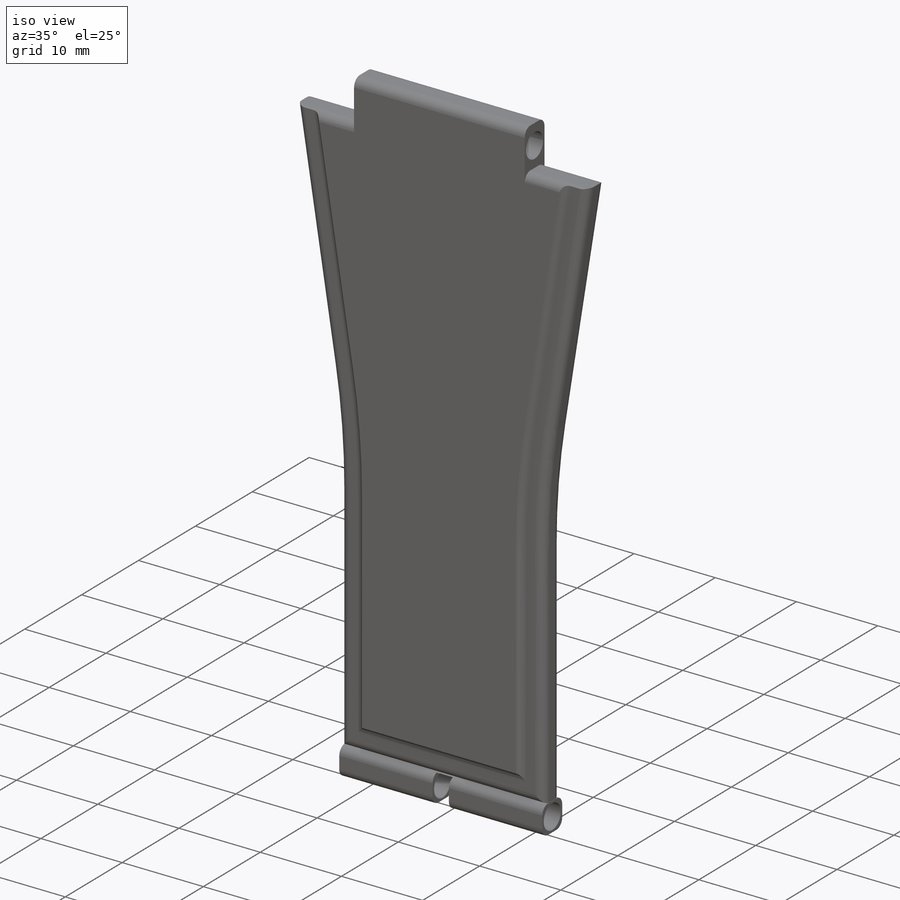
[diagram: iso view]
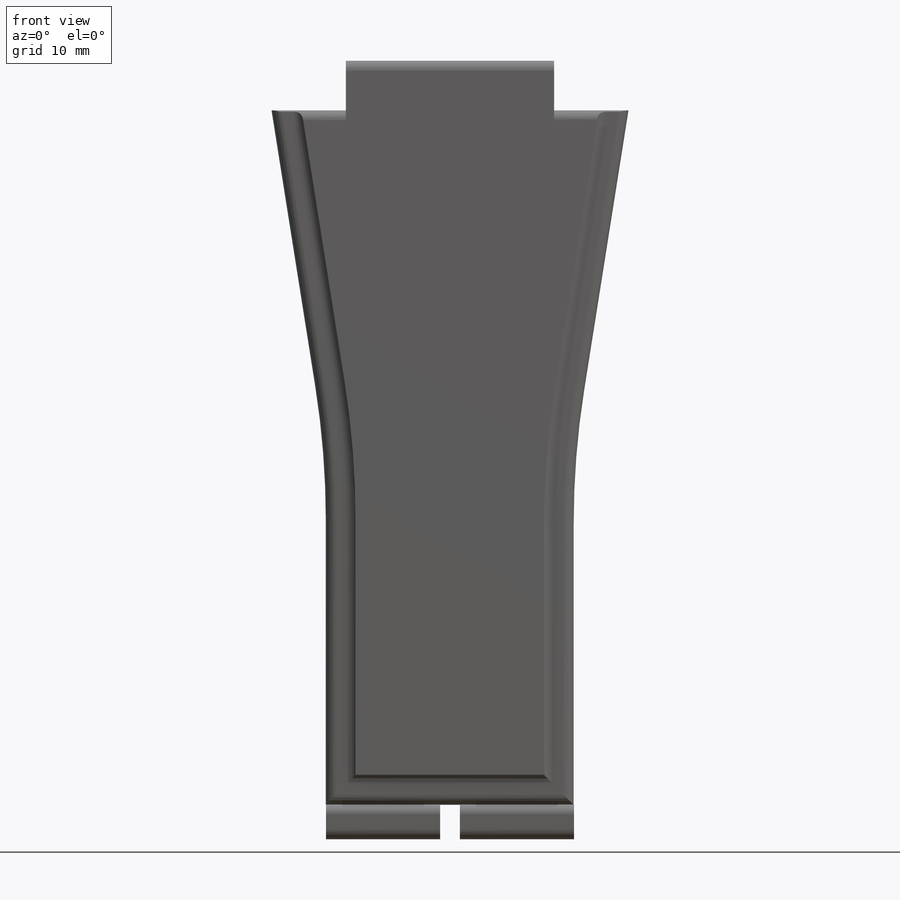
[diagram: front view]
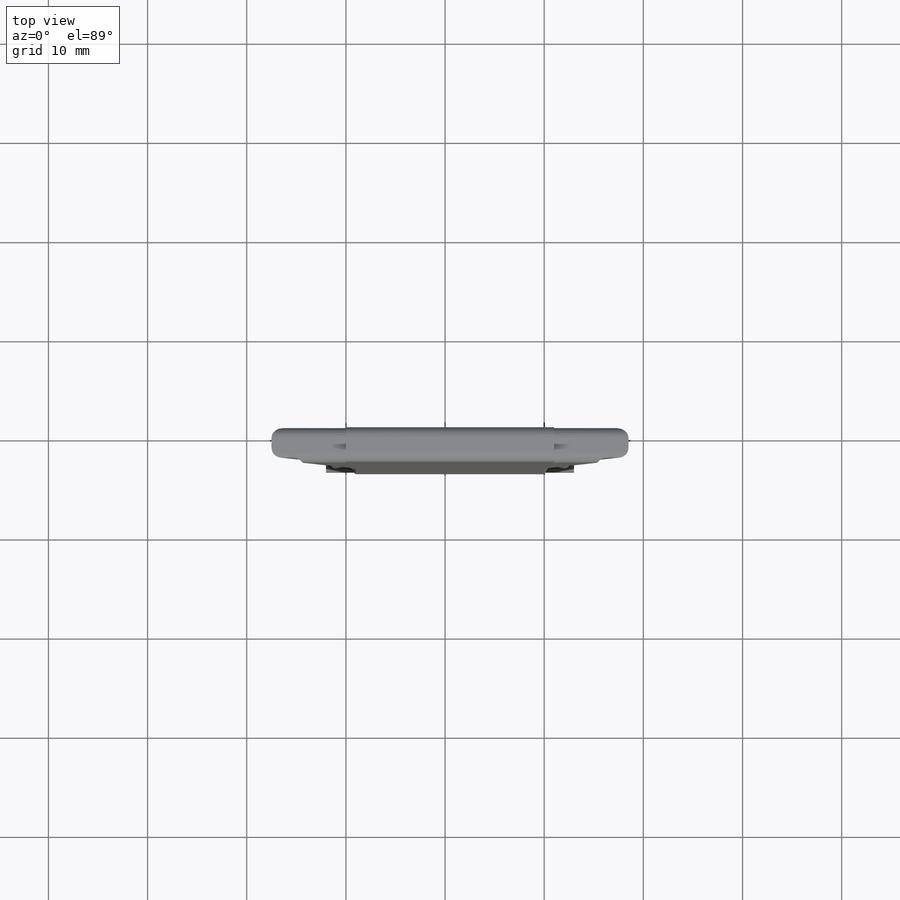
[diagram: top view]
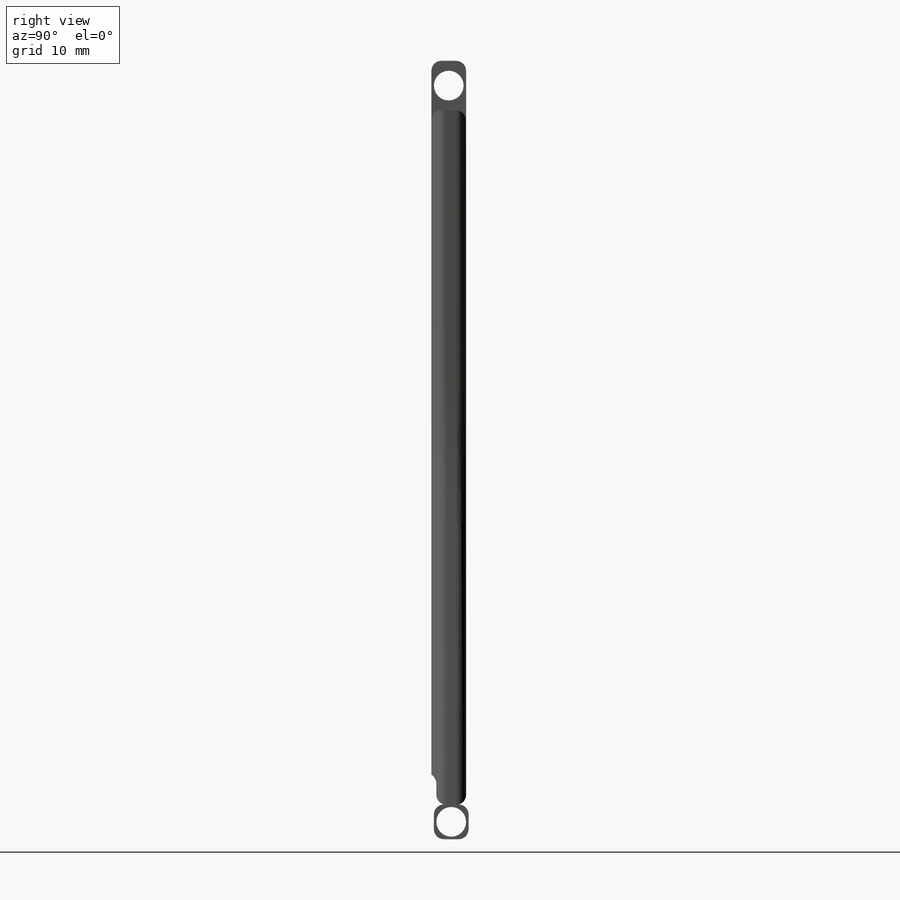
[diagram: right view]
SOLIDWORKS PART (.sldprt)
format: sldprt  version: not decoded by parser v0  size: 356,352 bytes
history: native  units: mm
features: plane x7, sketch x7, fillet x5, cut_extrude x4, extrude x2, material x1 (+8 scaffold rows collapsed)
feature tree (34):
  scaffold x8  (default folders/planes/origin — collapsed)
  material  "Material <sin especificar>"
  plane  "Alzado"
  plane  "Planta"
  plane  "Vista lateral"
  sketch  "Croquis1"  dims[c1.D1=21.0mm c1.D2=5.0mm c1.D3=5.0mm c1.D4=7.5mm c1.D5=7.5mm c1.D6=7.5mm c2.D6=90.0deg c3.D6=25.0mm c3.D7=~28.069451mm c4.D7=81.0deg c4.D8=7.5mm c5.D8=81.0deg c5.D9=~34.562292mm c5.D10=35.44mm c5.D11=~24.997669mm]
  extrude  "Saliente-Extruir1"  Depth=3.5mm
  fillet  "Redondeo1"  Radius=86mm
  sketch  "Croquis2"  dims[D1=3.0mm]
  cut_extrude  "Cortar-Extruir1"  Depth=0.5mm
  fillet  "Redondeo2"  Radius=1mm
  fillet  "Redondeo3"  Radius=1mm
  plane  "Plano1"  Offset=0mm
  sketch  "Croquis3"  dims[D1=3.0mm]
  cut_extrude  "Cortar-Extruir3"  [1 undecoded]
  plane  "Plano2"  Offset=0mm
  sketch  "Croquis7"  dims[D2=3.0mm D1=3.5mm D3=3.0mm D4=0.25mm D5=0.25mm]
  plane  "Plano5"  Offset=2mm
  sketch  "Croquis8"  dims[D1=1.0mm]
  extrude  "Saliente-Extruir2"  Depth=25mm
  fillet  "Redondeo4"  Radius=1mm
  fillet  "Redondeo5"  Radius=1mm
  plane  "Plano6"  Offset=0mm
  sketch  "Croquis9"  dims[c1.D1=~3.752442mm c2.D1=90.0deg c3.D1=3.4mm c3.D2=2.0mm]
  cut_extrude  "Cortar-Extruir7"  [1 undecoded]
  sketch  "Croquis10"
  cut_extrude  "Cortar-Extruir8"  [1 undecoded]
decode coverage: 14 of 18 modeling features carry decoded parameters
note: ~ marks probable driven/reference dimensions
note: 3 parameter values undecoded
summary: no parameter record found for 3 features
note: suppression state not decoded; provenance and decode notes live in map.json
